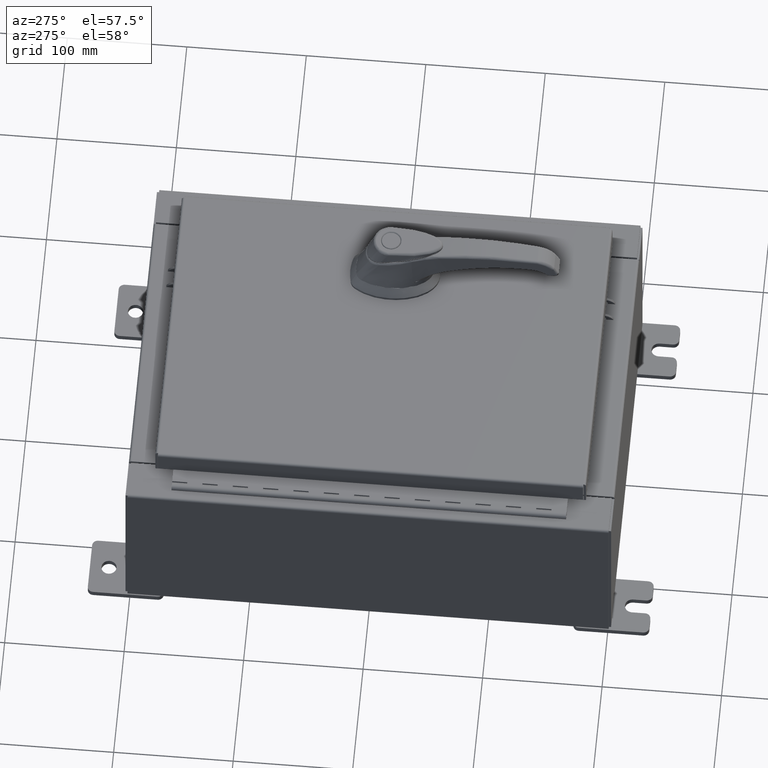
[diagram: clean part render]
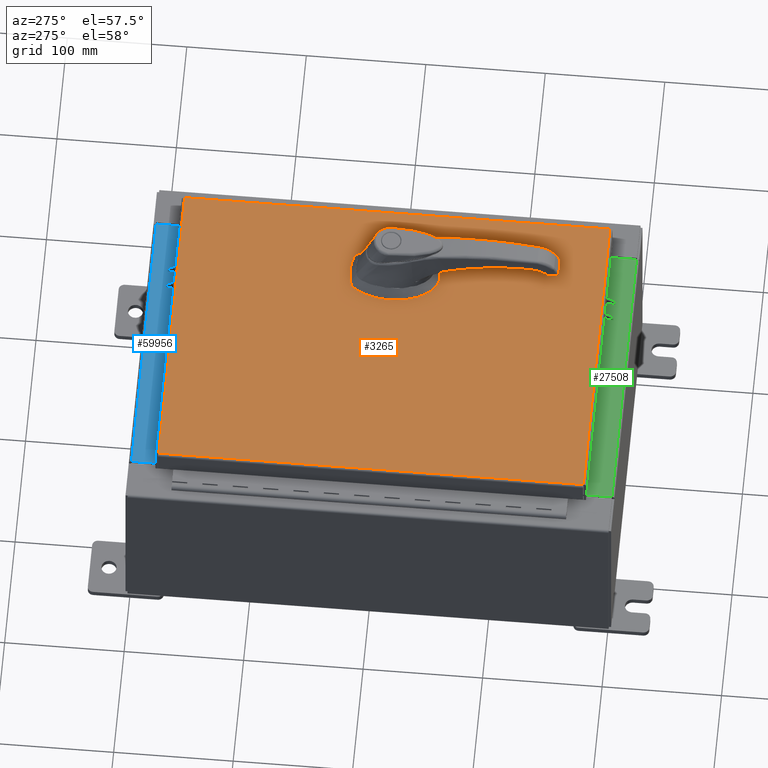
[diagram: same view with three faces highlighted in distinct colors, each labeled with its STEP entity id]
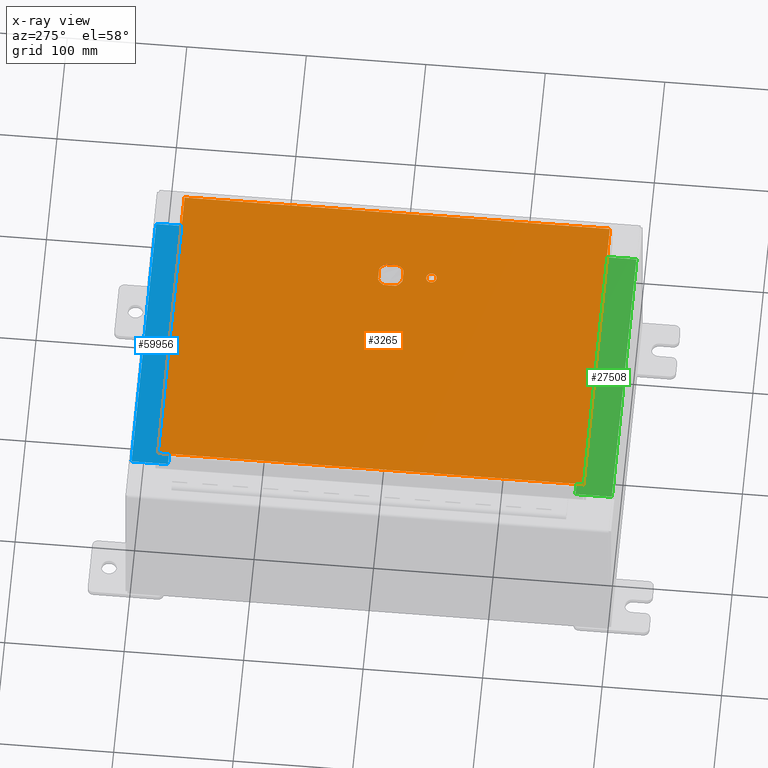
[diagram: x-ray of the same camera — body ghosted, the three highlighted faces saturated]
A machine part, auxiliary view with three faces highlighted in distinct colors.
The next image is the same camera in x-ray (body ghosted, the three faces saturated) — at least one of them is partly hidden behind the body in this view.
Their STEP definitions:

[orange] entity #3265 — the highlighted planar face has unit normal (0, 0, -1).
#328 = DIRECTION ( 'NONE',  ( -0.0000000000000000000, 0.0000000000000000000, 1.000000000000000000 ) ) ;
#2538 = ORIENTED_EDGE ( 'NONE', *, *, #91578, .F. ) ;
#2551 = EDGE_LOOP ( 'NONE', ( #94664, #56887, #2538, #21540, #50187, #100730, #34273, #23101 ) ) ;
#3042 = CARTESIAN_POINT ( 'NONE',  ( 2.377772629243688900, 0.4029999999999252000, 0.0000000000000000000 ) ) ;
#3091 = VECTOR ( 'NONE', #37740, 39.37007874015748100 ) ;
#3204 = LINE ( 'NONE', #75028, #25202 ) ;
#3265 = ADVANCED_FACE ( 'NONE', ( #57076, #101156, #37705 ), #57062, .F. ) ;
#4140 = ORIENTED_EDGE ( 'NONE', *, *, #35824, .T. ) ;
#5203 = EDGE_LOOP ( 'NONE', ( #17976, #103098 ) ) ;
#6958 = VECTOR ( 'NONE', #92856, 39.37007874015748100 ) ;
#7124 = CARTESIAN_POINT ( 'NONE',  ( 2.175000000000072700, -0.2002273707563079800, 0.0000000000000000000 ) ) ;
#9800 = ORIENTED_EDGE ( 'NONE', *, *, #105446, .T. ) ;
#10936 = DIRECTION ( 'NONE',  ( -0.0000000000000000000, 0.0000000000000000000, 1.000000000000000000 ) ) ;
#11145 = CARTESIAN_POINT ( 'NONE',  ( 2.778227370756308100, 0.4029999999999252000, 0.0000000000000000000 ) ) ;
#12886 = DIRECTION ( 'NONE',  ( 1.000000000000000000, 0.0000000000000000000, 0.0000000000000000000 ) ) ;
#13070 = EDGE_CURVE ( 'NONE', #27941, #84947, #62801, .T. ) ;
#13092 = DIRECTION ( 'NONE',  ( 0.0000000000000000000, 1.000000000000000000, 0.0000000000000000000 ) ) ;
#13182 = CIRCLE ( 'NONE', #89524, 0.4499999999999156900 ) ;
#13208 = AXIS2_PLACEMENT_3D ( 'NONE', #24170, #82079, #32449 ) ;
#13714 = CARTESIAN_POINT ( 'NONE',  ( -4.990300000000000400, -7.006300000000000400, -2.219626494852214000E-016 ) ) ;
#15269 = VECTOR ( 'NONE', #13092, 39.37007874015748100 ) ;
#17045 = AXIS2_PLACEMENT_3D ( 'NONE', #60517, #10936, #68841 ) ;
#17976 = ORIENTED_EDGE ( 'NONE', *, *, #78976, .F. ) ;
#20767 = CARTESIAN_POINT ( 'NONE',  ( 0.0000000000000000000, 0.4029999999999252000, 0.0000000000000000000 ) ) ;
#21540 = ORIENTED_EDGE ( 'NONE', *, *, #85942, .F. ) ;
#22341 = CARTESIAN_POINT ( 'NONE',  ( 2.749499999999998500, -1.338000000000000100, 0.0000000000000000000 ) ) ;
#23101 = ORIENTED_EDGE ( 'NONE', *, *, #92549, .F. ) ;
#23324 = CARTESIAN_POINT ( 'NONE',  ( 2.778227370756308100, -0.4029999999999252000, 0.0000000000000000000 ) ) ;
#24170 = CARTESIAN_POINT ( 'NONE',  ( 0.0000000000000000000, 0.0000000000000000000, 0.0000000000000000000 ) ) ;
#25088 = LINE ( 'NONE', #95668, #3091 ) ;
#25202 = VECTOR ( 'NONE', #25472, 39.37007874015748100 ) ;
#25472 = DIRECTION ( 'NONE',  ( 0.0000000000000000000, -1.000000000000000000, 0.0000000000000000000 ) ) ;
#27941 = VERTEX_POINT ( 'NONE', #3042 ) ;
#27972 = CARTESIAN_POINT ( 'NONE',  ( 2.577999999999998500, -1.338000000000000100, 0.0000000000000000000 ) ) ;
#28489 = CARTESIAN_POINT ( 'NONE',  ( 2.175000000000072700, 0.2002273707563079800, 0.0000000000000000000 ) ) ;
#28517 = VERTEX_POINT ( 'NONE', #22341 ) ;
#28936 = DIRECTION ( 'NONE',  ( -0.0000000000000000000, 0.0000000000000000000, 1.000000000000000000 ) ) ;
#29372 = CARTESIAN_POINT ( 'NONE',  ( -4.990300000000000400, 7.006300000000000400, -2.048885995248197400E-016 ) ) ;
#29663 = EDGE_CURVE ( 'NONE', #93517, #92851, #13182, .T. ) ;
#30835 = LINE ( 'NONE', #46461, #72272 ) ;
#31495 = LINE ( 'NONE', #20767, #72957 ) ;
#32449 = DIRECTION ( 'NONE',  ( -1.000000000000000000, 0.0000000000000000000, -0.0000000000000000000 ) ) ;
#34273 = ORIENTED_EDGE ( 'NONE', *, *, #97183, .F. ) ;
#34409 = CIRCLE ( 'NONE', #17045, 0.1715000000000000700 ) ;
#34873 = EDGE_CURVE ( 'NONE', #95993, #92851, #96766, .T. ) ;
#35824 = EDGE_CURVE ( 'NONE', #79496, #105466, #37274, .T. ) ;
#36287 = DIRECTION ( 'NONE',  ( 1.000000000000000000, 0.0000000000000000000, 0.0000000000000000000 ) ) ;
#37241 = CARTESIAN_POINT ( 'NONE',  ( 2.980999999999924400, 0.2002273707563080300, 0.0000000000000000000 ) ) ;
#37274 = LINE ( 'NONE', #54308, #15269 ) ;
#37705 = FACE_BOUND ( 'NONE', #2551, .T. ) ;
#37740 = DIRECTION ( 'NONE',  ( 1.000000000000000000, -0.0000000000000000000, -0.0000000000000000000 ) ) ;
#38228 = CARTESIAN_POINT ( 'NONE',  ( 2.577999999999998500, 0.0000000000000000000, 0.0000000000000000000 ) ) ;
#39346 = CIRCLE ( 'NONE', #73311, 0.1715000000000000700 ) ;
#39357 = CARTESIAN_POINT ( 'NONE',  ( 2.980999999999924800, -0.2002273707563079800, 0.0000000000000000000 ) ) ;
#41388 = LINE ( 'NONE', #62444, #88093 ) ;
#45726 = DIRECTION ( 'NONE',  ( -0.0000000000000000000, 0.0000000000000000000, 1.000000000000000000 ) ) ;
#45965 = EDGE_CURVE ( 'NONE', #84947, #68348, #73024, .T. ) ;
#46461 = CARTESIAN_POINT ( 'NONE',  ( 4.990299999999998600, 7.006300000000000400, -2.219626494852214000E-016 ) ) ;
#46549 = DIRECTION ( 'NONE',  ( 1.000000000000000000, 0.0000000000000000000, 0.0000000000000000000 ) ) ;
#47169 = AXIS2_PLACEMENT_3D ( 'NONE', #38228, #96127, #46549 ) ;
#48433 = VERTEX_POINT ( 'NONE', #29372 ) ;
#49882 = CARTESIAN_POINT ( 'NONE',  ( 2.577999999999998500, 0.0000000000000000000, 0.0000000000000000000 ) ) ;
#50187 = ORIENTED_EDGE ( 'NONE', *, *, #45965, .F. ) ;
#52409 = CARTESIAN_POINT ( 'NONE',  ( 4.990299999999998600, -7.006300000000000400, 3.244069492476312400E-016 ) ) ;
#52718 = VECTOR ( 'NONE', #60263, 39.37007874015748100 ) ;
#53704 = CIRCLE ( 'NONE', #47169, 0.4499999999999156900 ) ;
#54308 = CARTESIAN_POINT ( 'NONE',  ( 4.990299999999998600, -7.006300000000000400, 3.244069492476312400E-016 ) ) ;
#54774 = DIRECTION ( 'NONE',  ( -1.000000000000000000, -0.0000000000000000000, -0.0000000000000000000 ) ) ;
#56887 = ORIENTED_EDGE ( 'NONE', *, *, #29663, .F. ) ;
#57062 = PLANE ( 'NONE',  #13208 ) ;
#57076 = FACE_BOUND ( 'NONE', #5203, .T. ) ;
#58211 = DIRECTION ( 'NONE',  ( 1.000000000000000000, 0.0000000000000000000, 0.0000000000000000000 ) ) ;
#60263 = DIRECTION ( 'NONE',  ( 1.364372904336406500E-015, -1.000000000000000000, 0.0000000000000000000 ) ) ;
#60517 = CARTESIAN_POINT ( 'NONE',  ( 2.577999999999998500, -1.338000000000000100, 0.0000000000000000000 ) ) ;
#61924 = CARTESIAN_POINT ( 'NONE',  ( 4.990299999999998600, 7.006300000000000400, -2.219626494852214000E-016 ) ) ;
#62015 = DIRECTION ( 'NONE',  ( -1.000000000000000000, 0.0000000000000000000, 0.0000000000000000000 ) ) ;
#62444 = CARTESIAN_POINT ( 'NONE',  ( 0.0000000000000000000, -0.4029999999999252000, 0.0000000000000000000 ) ) ;
#62801 = CIRCLE ( 'NONE', #99184, 0.4499999999999156900 ) ;
#65195 = AXIS2_PLACEMENT_3D ( 'NONE', #78541, #28936, #86840 ) ;
#68348 = VERTEX_POINT ( 'NONE', #7124 ) ;
#68841 = DIRECTION ( 'NONE',  ( 1.000000000000000000, 0.0000000000000000000, 0.0000000000000000000 ) ) ;
#72272 = VECTOR ( 'NONE', #54774, 39.37007874015748100 ) ;
#72957 = VECTOR ( 'NONE', #62015, 39.37007874015748100 ) ;
#73024 = LINE ( 'NONE', #84567, #6958 ) ;
#73311 = AXIS2_PLACEMENT_3D ( 'NONE', #27972, #85896, #36287 ) ;
#75005 = VERTEX_POINT ( 'NONE', #11145 ) ;
#75028 = CARTESIAN_POINT ( 'NONE',  ( -4.990300000000000400, 7.006300000000000400, -2.048885995248197400E-016 ) ) ;
#75660 = VERTEX_POINT ( 'NONE', #106052 ) ;
#78541 = CARTESIAN_POINT ( 'NONE',  ( 2.577999999999998500, 0.0000000000000000000, 0.0000000000000000000 ) ) ;
#78976 = EDGE_CURVE ( 'NONE', #28517, #94214, #34409, .T. ) ;
#79496 = VERTEX_POINT ( 'NONE', #52409 ) ;
#79752 = VERTEX_POINT ( 'NONE', #13714 ) ;
#80429 = EDGE_CURVE ( 'NONE', #48433, #79752, #3204, .T. ) ;
#81360 = EDGE_CURVE ( 'NONE', #79752, #79496, #25088, .T. ) ;
#82079 = DIRECTION ( 'NONE',  ( 0.0000000000000000000, 0.0000000000000000000, -1.000000000000000000 ) ) ;
#84515 = CARTESIAN_POINT ( 'NONE',  ( 2.980999999999924400, 4.067195627826724000E-015, 0.0000000000000000000 ) ) ;
#84567 = CARTESIAN_POINT ( 'NONE',  ( 2.175000000000072700, 0.0000000000000000000, 0.0000000000000000000 ) ) ;
#84947 = VERTEX_POINT ( 'NONE', #28489 ) ;
#85896 = DIRECTION ( 'NONE',  ( -0.0000000000000000000, 0.0000000000000000000, 1.000000000000000000 ) ) ;
#85942 = EDGE_CURVE ( 'NONE', #68348, #75660, #53704, .T. ) ;
#86790 = EDGE_CURVE ( 'NONE', #94214, #28517, #39346, .T. ) ;
#86840 = DIRECTION ( 'NONE',  ( 1.000000000000000000, 0.0000000000000000000, 0.0000000000000000000 ) ) ;
#88093 = VECTOR ( 'NONE', #12886, 39.37007874015748100 ) ;
#89524 = AXIS2_PLACEMENT_3D ( 'NONE', #49882, #328, #58211 ) ;
#91578 = EDGE_CURVE ( 'NONE', #75660, #93517, #41388, .T. ) ;
#92549 = EDGE_CURVE ( 'NONE', #95993, #75005, #104856, .T. ) ;
#92851 = VERTEX_POINT ( 'NONE', #39357 ) ;
#92856 = DIRECTION ( 'NONE',  ( 0.0000000000000000000, -1.000000000000000000, 0.0000000000000000000 ) ) ;
#93517 = VERTEX_POINT ( 'NONE', #23324 ) ;
#94214 = VERTEX_POINT ( 'NONE', #101214 ) ;
#94664 = ORIENTED_EDGE ( 'NONE', *, *, #34873, .T. ) ;
#95336 = CARTESIAN_POINT ( 'NONE',  ( 2.577999999999998500, 0.0000000000000000000, 0.0000000000000000000 ) ) ;
#95398 = ORIENTED_EDGE ( 'NONE', *, *, #81360, .T. ) ;
#95668 = CARTESIAN_POINT ( 'NONE',  ( -4.990300000000000400, -7.006300000000000400, -2.219626494852214000E-016 ) ) ;
#95993 = VERTEX_POINT ( 'NONE', #37241 ) ;
#96127 = DIRECTION ( 'NONE',  ( -0.0000000000000000000, 0.0000000000000000000, 1.000000000000000000 ) ) ;
#96766 = LINE ( 'NONE', #84515, #52718 ) ;
#97183 = EDGE_CURVE ( 'NONE', #75005, #27941, #31495, .T. ) ;
#99184 = AXIS2_PLACEMENT_3D ( 'NONE', #95336, #45726, #103696 ) ;
#100730 = ORIENTED_EDGE ( 'NONE', *, *, #13070, .F. ) ;
#101156 = FACE_OUTER_BOUND ( 'NONE', #102390, .T. ) ;
#101214 = CARTESIAN_POINT ( 'NONE',  ( 2.406499999999998500, -1.338000000000000100, 0.0000000000000000000 ) ) ;
#102390 = EDGE_LOOP ( 'NONE', ( #95398, #4140, #9800, #103327 ) ) ;
#103098 = ORIENTED_EDGE ( 'NONE', *, *, #86790, .F. ) ;
#103327 = ORIENTED_EDGE ( 'NONE', *, *, #80429, .T. ) ;
#103696 = DIRECTION ( 'NONE',  ( 1.000000000000000000, 0.0000000000000000000, 0.0000000000000000000 ) ) ;
#104856 = CIRCLE ( 'NONE', #65195, 0.4499999999999156900 ) ;
#105446 = EDGE_CURVE ( 'NONE', #105466, #48433, #30835, .T. ) ;
#105466 = VERTEX_POINT ( 'NONE', #61924 ) ;
#106052 = CARTESIAN_POINT ( 'NONE',  ( 2.377772629243688900, -0.4029999999999252000, 0.0000000000000000000 ) ) ;

[blue] entity #59956 — the highlighted planar face has unit normal (0, 0, 1).
#5710 = CARTESIAN_POINT ( 'NONE',  ( -4.637199999999999100, -1.287299999999999200, 3.000000000000004400 ) ) ;
#10910 = CARTESIAN_POINT ( 'NONE',  ( 0.0000000000000000000, 1.069354855923099500E-014, 3.000000000000000400 ) ) ;
#12947 = VECTOR ( 'NONE', #24676, 39.37007874015748100 ) ;
#14062 = ORIENTED_EDGE ( 'NONE', *, *, #24274, .F. ) ;
#19624 = DIRECTION ( 'NONE',  ( 0.0000000000000000000, -1.000000000000000000, 3.566381192773190000E-015 ) ) ;
#19882 = EDGE_CURVE ( 'NONE', #34718, #104735, #83293, .T. ) ;
#19885 = VECTOR ( 'NONE', #60623, 39.37007874015748100 ) ;
#23239 = CARTESIAN_POINT ( 'NONE',  ( 4.637200000000001800, -1.287299999999999900, 3.000000000000004400 ) ) ;
#24274 = EDGE_CURVE ( 'NONE', #40487, #81614, #78989, .T. ) ;
#24676 = DIRECTION ( 'NONE',  ( -0.0000000000000000000, -1.000000000000000000, 3.566381192773190000E-015 ) ) ;
#32998 = CARTESIAN_POINT ( 'NONE',  ( 4.637200000000001800, -1.300299999999999800, 3.000000000000004400 ) ) ;
#34490 = CARTESIAN_POINT ( 'NONE',  ( 0.0000000000000000000, -0.08770000000000026400, 3.000000000000000900 ) ) ;
#34718 = VERTEX_POINT ( 'NONE', #5710 ) ;
#35839 = AXIS2_PLACEMENT_3D ( 'NONE', #10910, #69188, #19624 ) ;
#38284 = VECTOR ( 'NONE', #100215, 39.37007874015748100 ) ;
#39263 = EDGE_CURVE ( 'NONE', #40487, #104735, #106866, .T. ) ;
#40487 = VERTEX_POINT ( 'NONE', #64269 ) ;
#40840 = LINE ( 'NONE', #91867, #38284 ) ;
#44488 = EDGE_LOOP ( 'NONE', ( #77074, #85651, #14062, #56215 ) ) ;
#56215 = ORIENTED_EDGE ( 'NONE', *, *, #39263, .T. ) ;
#59956 = ADVANCED_FACE ( 'NONE', ( #89661 ), #60840, .T. ) ;
#60266 = CARTESIAN_POINT ( 'NONE',  ( -4.637199999999999100, -0.07469999999999973900, 3.000000000000000400 ) ) ;
#60623 = DIRECTION ( 'NONE',  ( -0.0000000000000000000, 1.000000000000000000, -3.566381192773190000E-015 ) ) ;
#60840 = PLANE ( 'NONE',  #35839 ) ;
#64269 = CARTESIAN_POINT ( 'NONE',  ( 4.637200000000001800, -0.08769999999999993100, 3.000000000000000400 ) ) ;
#69188 = DIRECTION ( 'NONE',  ( 0.0000000000000000000, 3.566381192773190000E-015, 1.000000000000000000 ) ) ;
#70825 = CARTESIAN_POINT ( 'NONE',  ( -4.637199999999999100, -0.08770000000000026400, 3.000000000000000400 ) ) ;
#77074 = ORIENTED_EDGE ( 'NONE', *, *, #19882, .F. ) ;
#78989 = LINE ( 'NONE', #32998, #12947 ) ;
#79289 = EDGE_CURVE ( 'NONE', #81614, #34718, #40840, .T. ) ;
#81614 = VERTEX_POINT ( 'NONE', #23239 ) ;
#83293 = LINE ( 'NONE', #60266, #19885 ) ;
#85651 = ORIENTED_EDGE ( 'NONE', *, *, #79289, .F. ) ;
#89661 = FACE_OUTER_BOUND ( 'NONE', #44488, .T. ) ;
#91867 = CARTESIAN_POINT ( 'NONE',  ( 4.637200000000001800, -1.287299999999999900, 3.000000000000004000 ) ) ;
#92378 = DIRECTION ( 'NONE',  ( -1.000000000000000000, 0.0000000000000000000, 0.0000000000000000000 ) ) ;
#100215 = DIRECTION ( 'NONE',  ( -1.000000000000000000, 0.0000000000000000000, 0.0000000000000000000 ) ) ;
#104334 = VECTOR ( 'NONE', #92378, 39.37007874015748100 ) ;
#104735 = VERTEX_POINT ( 'NONE', #70825 ) ;
#106866 = LINE ( 'NONE', #34490, #104334 ) ;

[green] entity #27508 — the highlighted planar face has unit normal (-0, -0, 1).
#8007 = EDGE_CURVE ( 'NONE', #22691, #84192, #59193, .T. ) ;
#9775 = LINE ( 'NONE', #57181, #51217 ) ;
#10629 = CARTESIAN_POINT ( 'NONE',  ( -4.637199999999999100, -1.287299999999999200, 3.000000000000004400 ) ) ;
#11681 = DIRECTION ( 'NONE',  ( -1.000000000000000000, 0.0000000000000000000, 0.0000000000000000000 ) ) ;
#22691 = VERTEX_POINT ( 'NONE', #30742 ) ;
#26586 = EDGE_LOOP ( 'NONE', ( #90923, #101777, #96616, #31516 ) ) ;
#27508 = ADVANCED_FACE ( 'NONE', ( #57838 ), #32025, .T. ) ;
#30742 = CARTESIAN_POINT ( 'NONE',  ( 4.637200000000001800, -1.287299999999999900, 3.000000000000004400 ) ) ;
#31516 = ORIENTED_EDGE ( 'NONE', *, *, #88162, .T. ) ;
#32025 = PLANE ( 'NONE',  #88764 ) ;
#34410 = CARTESIAN_POINT ( 'NONE',  ( 4.637200000000001800, -1.300299999999999800, 3.000000000000004400 ) ) ;
#40322 = DIRECTION ( 'NONE',  ( 0.0000000000000000000, 3.566381192773190000E-015, 1.000000000000000000 ) ) ;
#51217 = VECTOR ( 'NONE', #90496, 39.37007874015748100 ) ;
#53092 = CARTESIAN_POINT ( 'NONE',  ( 0.0000000000000000000, -0.08770000000000026400, 3.000000000000000900 ) ) ;
#56108 = EDGE_CURVE ( 'NONE', #84192, #80293, #9775, .T. ) ;
#57181 = CARTESIAN_POINT ( 'NONE',  ( -4.637199999999999100, -0.07469999999999973900, 3.000000000000000400 ) ) ;
#57838 = FACE_OUTER_BOUND ( 'NONE', #26586, .T. ) ;
#59193 = LINE ( 'NONE', #94536, #86458 ) ;
#60498 = VECTOR ( 'NONE', #92294, 39.37007874015748100 ) ;
#69753 = DIRECTION ( 'NONE',  ( -1.000000000000000000, 0.0000000000000000000, 0.0000000000000000000 ) ) ;
#73613 = CARTESIAN_POINT ( 'NONE',  ( -4.637199999999999100, -0.08770000000000026400, 3.000000000000000400 ) ) ;
#77208 = EDGE_CURVE ( 'NONE', #90660, #22691, #82535, .T. ) ;
#80293 = VERTEX_POINT ( 'NONE', #73613 ) ;
#82535 = LINE ( 'NONE', #34410, #60498 ) ;
#84192 = VERTEX_POINT ( 'NONE', #10629 ) ;
#86458 = VECTOR ( 'NONE', #11681, 39.37007874015748100 ) ;
#87169 = VECTOR ( 'NONE', #69753, 39.37007874015748100 ) ;
#88162 = EDGE_CURVE ( 'NONE', #90660, #80293, #92274, .T. ) ;
#88764 = AXIS2_PLACEMENT_3D ( 'NONE', #89933, #40322, #98264 ) ;
#89216 = CARTESIAN_POINT ( 'NONE',  ( 4.637200000000001800, -0.08769999999999993100, 3.000000000000000400 ) ) ;
#89933 = CARTESIAN_POINT ( 'NONE',  ( 0.0000000000000000000, 1.069354855923099500E-014, 3.000000000000000400 ) ) ;
#90496 = DIRECTION ( 'NONE',  ( -0.0000000000000000000, 1.000000000000000000, -3.566381192773190000E-015 ) ) ;
#90660 = VERTEX_POINT ( 'NONE', #89216 ) ;
#90923 = ORIENTED_EDGE ( 'NONE', *, *, #56108, .F. ) ;
#92274 = LINE ( 'NONE', #53092, #87169 ) ;
#92294 = DIRECTION ( 'NONE',  ( -0.0000000000000000000, -1.000000000000000000, 3.566381192773190000E-015 ) ) ;
#94536 = CARTESIAN_POINT ( 'NONE',  ( 4.637200000000001800, -1.287299999999999900, 3.000000000000004000 ) ) ;
#96616 = ORIENTED_EDGE ( 'NONE', *, *, #77208, .F. ) ;
#98264 = DIRECTION ( 'NONE',  ( 0.0000000000000000000, -1.000000000000000000, 3.566381192773190000E-015 ) ) ;
#101777 = ORIENTED_EDGE ( 'NONE', *, *, #8007, .F. ) ;